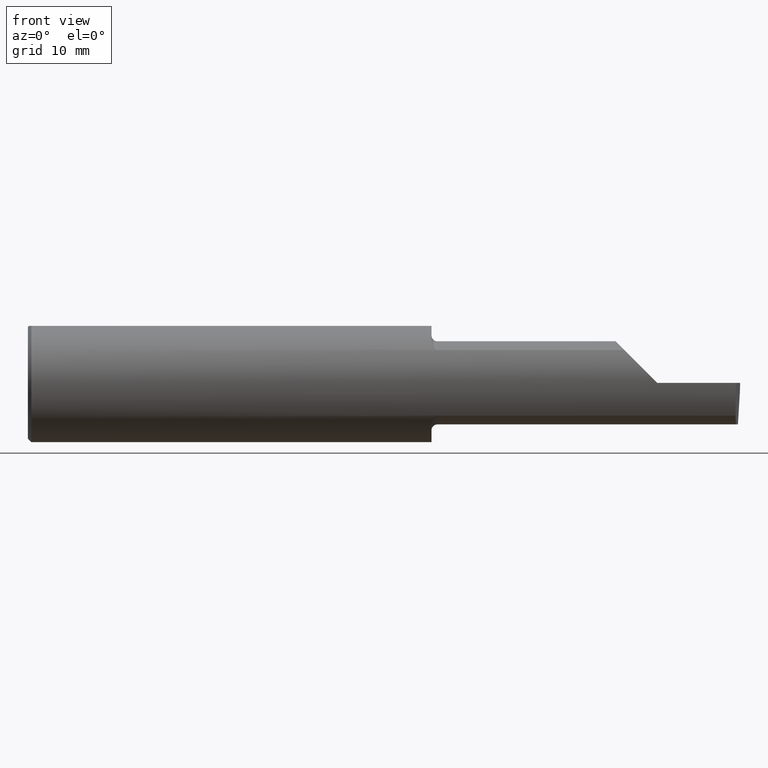
[diagram: clean part render]
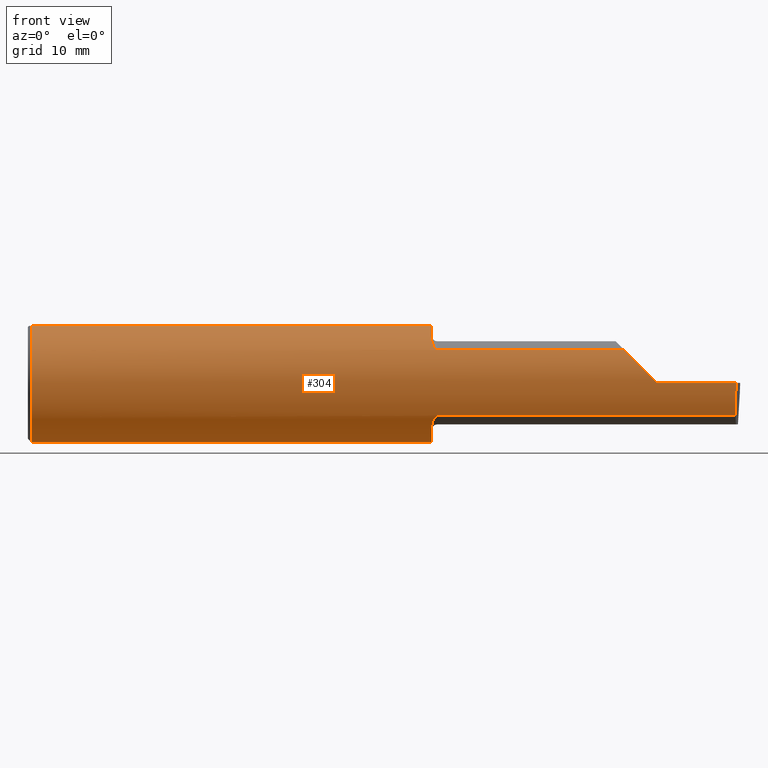
[diagram: same view with one face highlighted and labeled with its STEP entity id]
A machine part, front view. The second image highlights one B-rep face of the part: STEP entity #304.
In plain terms, the highlighted cylindrical surface (partial cylindrical patch) has radius 6.3462 mm, axis along (-1, -0, -0).
Its self-contained STEP definition (entity closure, byte-faithful):
#1 = VECTOR ( 'NONE', #216, 39.37007874015748854 ) ;
#12 = CARTESIAN_POINT ( 'NONE',  ( 1.721718393013769610, -0.2077830475237242569, 0.1387513848711936226 ) ) ;
#17 = CARTESIAN_POINT ( 'NONE',  ( 2.299500000000000099, -0.2080850024789291652, -0.1382955322609665250 ) ) ;
#18 = CARTESIAN_POINT ( 'NONE',  ( 0.01499999999999999944, 0.000000000000000000, 0.000000000000000000 ) ) ;
#22 = EDGE_CURVE ( 'NONE', #267, #264, #620, .T. ) ;
#38 = CARTESIAN_POINT ( 'NONE',  ( 0.000000000000000000, 0.06997856814768359246, 0.2398500000000000076 ) ) ;
#47 = B_SPLINE_CURVE_WITH_KNOTS ( 'NONE', 3,
 ( #792, #242, #730, #181, #431, #670, #375, #119, #370, #244, #490, #732 ),
 .UNSPECIFIED., .F., .F.,
 ( 4, 2, 2, 2, 2, 4 ),
 ( 1.964491429041408350E-07, 0.0001260981470478411324, 0.0002519998449527780849, 0.0005038032407626388169, 0.001007410032382360281, 0.002014623615621801908 ),
 .UNSPECIFIED. ) ;
#51 = CARTESIAN_POINT ( 'NONE',  ( 1.700000000000000178, 0.000000000000000000, 0.000000000000000000 ) ) ;
#53 = EDGE_CURVE ( 'NONE', #608, #605, #455, .T. ) ;
#68 = CARTESIAN_POINT ( 'NONE',  ( 1.700000000000000400, -0.1665641037263010105, 0.1863429692936361404 ) ) ;
#69 = CARTESIAN_POINT ( 'NONE',  ( 0.000000000000000000, 0.000000000000000000, 0.000000000000000000 ) ) ;
#76 = CARTESIAN_POINT ( 'NONE',  ( 1.717647060162628581, -0.2062109266231183513, 0.1410799729252290025 ) ) ;
#80 = CARTESIAN_POINT ( 'NONE',  ( 2.980479240051444378, -0.2080850024789291652, -0.1382955322609665250 ) ) ;
#83 = CARTESIAN_POINT ( 'NONE',  ( 2.552984868485333347, -0.2355204011147992438, 0.09701513151466735485 ) ) ;
#86 = DIRECTION ( 'NONE',  ( -1.000000000000000000, -0.000000000000000000, -0.000000000000000000 ) ) ;
#97 = DIRECTION ( 'NONE',  ( 1.000000000000000000, 0.000000000000000000, 0.000000000000000000 ) ) ;
#112 = LINE ( 'NONE', #354, #315 ) ;
#116 = CARTESIAN_POINT ( 'NONE',  ( 1.700000000000000178, -0.06997856814768374512, 0.2398500000000000076 ) ) ;
#119 = CARTESIAN_POINT ( 'NONE',  ( 1.708176740666625060, -0.1972027065478073882, -0.1535263573771913082 ) ) ;
#121 = EDGE_CURVE ( 'NONE', #299, #186, #158, .T. ) ;
#125 = DIRECTION ( 'NONE',  ( 1.000000000000000000, 0.000000000000000000, 0.000000000000000000 ) ) ;
#128 = CARTESIAN_POINT ( 'NONE',  ( 1.723329956043142985, -0.2080850024798590603, 0.1382955322595675884 ) ) ;
#132 = EDGE_LOOP ( 'NONE', ( #416, #230, #338, #177, #168, #435, #525, #180, #671, #398, #149, #505, #602, #302 ) ) ;
#140 = CARTESIAN_POINT ( 'NONE',  ( 2.650000000000000355, -0.2498499999999999610, 4.286263797015727350E-17 ) ) ;
#148 = CARTESIAN_POINT ( 'NONE',  ( 2.511704467739034552, -0.2080850024789292485, 0.1382955322609664139 ) ) ;
#149 = ORIENTED_EDGE ( 'NONE', *, *, #748, .F. ) ;
#155 = DIRECTION ( 'NONE',  ( -1.000000000000000000, -0.000000000000000000, -0.000000000000000000 ) ) ;
#158 =( BOUNDED_CURVE ( )  B_SPLINE_CURVE ( 3, ( #140, #636, #83, #148 ),
 .UNSPECIFIED., .F., .F. ) 
 B_SPLINE_CURVE_WITH_KNOTS ( ( 4, 4 ),
 ( 4.712388980384689674, 5.298966915116346321 ),
 .UNSPECIFIED. ) 
 CURVE ( )  GEOMETRIC_REPRESENTATION_ITEM ( )  RATIONAL_B_SPLINE_CURVE ( ( 1.000000000000000000, 0.9715321379117538569, 0.9715321379117538569, 1.000000000000000000 ) ) 
 REPRESENTATION_ITEM ( '' )  );
#167 = EDGE_CURVE ( 'NONE', #560, #299, #640, .T. ) ;
#168 = ORIENTED_EDGE ( 'NONE', *, *, #760, .F. ) ;
#170 = CARTESIAN_POINT ( 'NONE',  ( 1.725000000000000089, -0.2080850024789292485, 0.1382955322609664972 ) ) ;
#177 = ORIENTED_EDGE ( 'NONE', *, *, #585, .F. ) ;
#180 = ORIENTED_EDGE ( 'NONE', *, *, #22, .F. ) ;
#181 = CARTESIAN_POINT ( 'NONE',  ( 1.718863362722771404, -0.2068301641248771194, -0.1401678546132359982 ) ) ;
#184 = VECTOR ( 'NONE', #764, 39.37007874015748143 ) ;
#186 = VERTEX_POINT ( 'NONE', #604 ) ;
#196 = CARTESIAN_POINT ( 'NONE',  ( 1.714343523383978773, -0.2041337200786084161, 0.1440846171672511000 ) ) ;
#198 = LINE ( 'NONE', #463, #1 ) ;
#202 = DIRECTION ( 'NONE',  ( 0.000000000000000000, 0.000000000000000000, 1.000000000000000000 ) ) ;
#204 = CARTESIAN_POINT ( 'NONE',  ( 1.706159563508733878, -0.1933019864360849271, 0.1584298865564830183 ) ) ;
#216 = DIRECTION ( 'NONE',  ( 0.02616100201822768243, -0.0009135623211515309658, 0.9996573249755575929 ) ) ;
#230 = ORIENTED_EDGE ( 'NONE', *, *, #167, .T. ) ;
#242 = CARTESIAN_POINT ( 'NONE',  ( 1.723318040126429640, -0.2080850024789289987, -0.1382955322609666915 ) ) ;
#244 = CARTESIAN_POINT ( 'NONE',  ( 1.701385488563270210, -0.1808287530430325862, -0.1728790649396286794 ) ) ;
#251 = VERTEX_POINT ( 'NONE', #116 ) ;
#257 = AXIS2_PLACEMENT_3D ( 'NONE', #69, #324, #555 ) ;
#260 = CARTESIAN_POINT ( 'NONE',  ( 2.982632426700502215, -0.2498495826666993769, -0.0004566631977452191267 ) ) ;
#264 = VERTEX_POINT ( 'NONE', #662 ) ;
#267 = VERTEX_POINT ( 'NONE', #298 ) ;
#285 = DIRECTION ( 'NONE',  ( 0.000000000000000000, 0.000000000000000000, -1.000000000000000000 ) ) ;
#293 = CARTESIAN_POINT ( 'NONE',  ( 1.700000000000000178, -0.1616050818046604332, -0.1905487340154980169 ) ) ;
#298 = CARTESIAN_POINT ( 'NONE',  ( 0.01499999999999999944, 0.000000000000000000, -0.2498499999999999888 ) ) ;
#299 = VERTEX_POINT ( 'NONE', #427 ) ;
#302 = ORIENTED_EDGE ( 'NONE', *, *, #363, .T. ) ;
#304 = ADVANCED_FACE ( 'NONE', ( #362 ), #321, .T. ) ;
#315 = VECTOR ( 'NONE', #97, 39.37007874015748143 ) ;
#321 = CYLINDRICAL_SURFACE ( 'NONE', #257, 0.2498499999999999888 ) ;
#324 = DIRECTION ( 'NONE',  ( -1.000000000000000000, -0.000000000000000000, -0.000000000000000000 ) ) ;
#326 =( BOUNDED_CURVE ( )  B_SPLINE_CURVE ( 3, ( #736, #378, #443, #260 ),
 .UNSPECIFIED., .F., .T. ) 
 B_SPLINE_CURVE_WITH_KNOTS ( ( 4, 4 ),
 ( 0.05713034791898981279, 0.6418805321923489737 ),
 .UNSPECIFIED. ) 
 CURVE ( )  GEOMETRIC_REPRESENTATION_ITEM ( )  RATIONAL_B_SPLINE_CURVE ( ( 1.000000000000000000, 0.9717080070095445166, 0.9717080070095445166, 1.000000000000000000 ) ) 
 REPRESENTATION_ITEM ( '' )  );
#333 = CARTESIAN_POINT ( 'NONE',  ( 2.982644377562602589, -0.2498499999999999610, 1.813681607540488003E-17 ) ) ;
#338 = ORIENTED_EDGE ( 'NONE', *, *, #121, .T. ) ;
#349 = CARTESIAN_POINT ( 'NONE',  ( 0.01499999999999998036, 0.06997856814768359246, 0.2398500000000000076 ) ) ;
#354 = CARTESIAN_POINT ( 'NONE',  ( 2.299500000000000099, -0.2080850024789291652, 0.1382955322609665250 ) ) ;
#362 = FACE_OUTER_BOUND ( 'NONE', #132, .T. ) ;
#363 = EDGE_CURVE ( 'NONE', #778, #644, #326, .T. ) ;
#369 = VERTEX_POINT ( 'NONE', #553 ) ;
#370 = CARTESIAN_POINT ( 'NONE',  ( 1.706147634408388125, -0.1932733126899460752, -0.1584637047788196307 ) ) ;
#375 = CARTESIAN_POINT ( 'NONE',  ( 1.712579853086619419, -0.2024300470081735470, -0.1464774911482684128 ) ) ;
#377 = CARTESIAN_POINT ( 'NONE',  ( 1.700367168219774072, -0.1713400252854603567, 0.1819601557798505298 ) ) ;
#378 = CARTESIAN_POINT ( 'NONE',  ( 2.980602402804240381, -0.2354324170447328057, -0.09714751587400703714 ) ) ;
#386 = DIRECTION ( 'NONE',  ( 0.000000000000000000, 0.000000000000000000, 1.000000000000000000 ) ) ;
#390 = EDGE_CURVE ( 'NONE', #369, #687, #47, .T. ) ;
#393 = CARTESIAN_POINT ( 'NONE',  ( 1.701849548162864600, -0.1805300287242674606, 0.1728462070311780063 ) ) ;
#398 = ORIENTED_EDGE ( 'NONE', *, *, #53, .F. ) ;
#409 = AXIS2_PLACEMENT_3D ( 'NONE', #18, #86, #202 ) ;
#416 = ORIENTED_EDGE ( 'NONE', *, *, #539, .T. ) ;
#420 = VERTEX_POINT ( 'NONE', #448 ) ;
#424 = AXIS2_PLACEMENT_3D ( 'NONE', #501, #125, #679 ) ;
#427 = CARTESIAN_POINT ( 'NONE',  ( 2.650000000000000355, -0.2498499999999999610, 4.286263797015727350E-17 ) ) ;
#431 = CARTESIAN_POINT ( 'NONE',  ( 1.717611663768900510, -0.2061921161193830676, -0.1411075319999376687 ) ) ;
#435 = ORIENTED_EDGE ( 'NONE', *, *, #727, .F. ) ;
#443 = CARTESIAN_POINT ( 'NONE',  ( 2.981341028891338230, -0.2497592792593404665, -0.04986346618387295371 ) ) ;
#445 = EDGE_CURVE ( 'NONE', #264, #251, #702, .T. ) ;
#448 = CARTESIAN_POINT ( 'NONE',  ( 1.700000000000000178, -0.1616050818046604332, 0.1905487340154980169 ) ) ;
#455 = LINE ( 'NONE', #38, #646 ) ;
#463 = CARTESIAN_POINT ( 'NONE',  ( 2.977412177158956563, -0.2496672875357696664, -0.1999314649951114686 ) ) ;
#490 = CARTESIAN_POINT ( 'NONE',  ( 1.700000000000000178, -0.1716188362992555616, -0.1820560320165479640 ) ) ;
#501 = CARTESIAN_POINT ( 'NONE',  ( 1.700000000000000178, 0.000000000000000000, 0.000000000000000000 ) ) ;
#505 = ORIENTED_EDGE ( 'NONE', *, *, #390, .F. ) ;
#513 = CARTESIAN_POINT ( 'NONE',  ( 0.000000000000000000, -0.06997856814768359246, 0.2398500000000000076 ) ) ;
#524 = DIRECTION ( 'NONE',  ( -1.000000000000000000, -0.000000000000000000, -0.000000000000000000 ) ) ;
#525 = ORIENTED_EDGE ( 'NONE', *, *, #445, .F. ) ;
#527 = EDGE_CURVE ( 'NONE', #778, #369, #577, .T. ) ;
#539 = EDGE_CURVE ( 'NONE', #644, #560, #198, .T. ) ;
#549 = CIRCLE ( 'NONE', #583, 0.2498499999999999888 ) ;
#553 = CARTESIAN_POINT ( 'NONE',  ( 1.725000000000000089, -0.2080850024789291375, -0.1382955322609665805 ) ) ;
#555 = DIRECTION ( 'NONE',  ( 0.000000000000000000, 0.000000000000000000, 1.000000000000000000 ) ) ;
#558 = DIRECTION ( 'NONE',  ( -1.000000000000000000, -0.000000000000000000, -0.000000000000000000 ) ) ;
#560 = VERTEX_POINT ( 'NONE', #333 ) ;
#577 = LINE ( 'NONE', #17, #597 ) ;
#578 = CARTESIAN_POINT ( 'NONE',  ( 4.499279347985559139E-32, -0.2498499999999999610, 3.673940397442053459E-16 ) ) ;
#583 = AXIS2_PLACEMENT_3D ( 'NONE', #51, #586, #285 ) ;
#585 = EDGE_CURVE ( 'NONE', #668, #186, #112, .T. ) ;
#586 = DIRECTION ( 'NONE',  ( 1.000000000000000000, 0.000000000000000000, 0.000000000000000000 ) ) ;
#596 = AXIS2_PLACEMENT_3D ( 'NONE', #621, #558, #386 ) ;
#597 = VECTOR ( 'NONE', #155, 39.37007874015748143 ) ;
#602 = ORIENTED_EDGE ( 'NONE', *, *, #527, .F. ) ;
#604 = CARTESIAN_POINT ( 'NONE',  ( 2.511704467739034552, -0.2080850024789292485, 0.1382955322609664139 ) ) ;
#605 = VERTEX_POINT ( 'NONE', #349 ) ;
#608 = VERTEX_POINT ( 'NONE', #723 ) ;
#614 = CARTESIAN_POINT ( 'NONE',  ( 1.718876997637615034, -0.2068363917296600907, 0.1401586554522229189 ) ) ;
#620 = CIRCLE ( 'NONE', #409, 0.2498499999999999888 ) ;
#621 = CARTESIAN_POINT ( 'NONE',  ( 0.01499999999999999944, 0.000000000000000000, 0.000000000000000000 ) ) ;
#628 = CARTESIAN_POINT ( 'NONE',  ( 1.725000000000000089, -0.2080850024789292485, 0.1382955322609664972 ) ) ;
#633 = CARTESIAN_POINT ( 'NONE',  ( 1.708182335268384477, -0.1972192205116131691, 0.1535061413537209818 ) ) ;
#636 = CARTESIAN_POINT ( 'NONE',  ( 2.600434159100403875, -0.2498499999999999055, 0.04956584089959691769 ) ) ;
#637 = B_SPLINE_CURVE_WITH_KNOTS ( 'NONE', 3,
 ( #691, #68, #377, #393, #755, #204, #633, #683, #196, #76, #614, #12, #128, #628 ),
 .UNSPECIFIED., .F., .F.,
 ( 4, 2, 2, 2, 2, 2, 4 ),
 ( 0.0003834465838148164922, 0.0008781406165086738831, 0.001372834649202531437, 0.001867528681896388773, 0.002114875698243311695, 0.002238549206416766760, 0.002362222714590221824 ),
 .UNSPECIFIED. ) ;
#640 = LINE ( 'NONE', #578, #184 ) ;
#644 = VERTEX_POINT ( 'NONE', #771 ) ;
#646 = VECTOR ( 'NONE', #524, 39.37007874015748143 ) ;
#662 = CARTESIAN_POINT ( 'NONE',  ( 0.01499999999999999944, -0.06997856814768359246, 0.2398500000000000076 ) ) ;
#668 = VERTEX_POINT ( 'NONE', #170 ) ;
#670 = CARTESIAN_POINT ( 'NONE',  ( 1.714302603425052363, -0.2041009206016213828, -0.1441313430770039816 ) ) ;
#671 = ORIENTED_EDGE ( 'NONE', *, *, #786, .F. ) ;
#679 = DIRECTION ( 'NONE',  ( 0.000000000000000000, 0.000000000000000000, -1.000000000000000000 ) ) ;
#683 = CARTESIAN_POINT ( 'NONE',  ( 1.712616400345754908, -0.2024684335577102146, 0.1464246884265637538 ) ) ;
#687 = VERTEX_POINT ( 'NONE', #293 ) ;
#691 = CARTESIAN_POINT ( 'NONE',  ( 1.700000000000000178, -0.1616050818046604332, 0.1905487340154980169 ) ) ;
#694 = CIRCLE ( 'NONE', #596, 0.2498499999999999888 ) ;
#695 = VECTOR ( 'NONE', #707, 39.37007874015748143 ) ;
#702 = LINE ( 'NONE', #513, #695 ) ;
#707 = DIRECTION ( 'NONE',  ( 1.000000000000000000, 0.000000000000000000, 0.000000000000000000 ) ) ;
#723 = CARTESIAN_POINT ( 'NONE',  ( 1.700000000000000178, 0.06997856814768360634, 0.2398500000000000076 ) ) ;
#727 = EDGE_CURVE ( 'NONE', #251, #420, #549, .T. ) ;
#730 = CARTESIAN_POINT ( 'NONE',  ( 1.721700027347578876, -0.2077785947292768443, -0.1387580622202825020 ) ) ;
#732 = CARTESIAN_POINT ( 'NONE',  ( 1.700000000000000178, -0.1616050818046604332, -0.1905487340154980169 ) ) ;
#736 = CARTESIAN_POINT ( 'NONE',  ( 2.980479240051444378, -0.2080850024789291652, -0.1382955322609665250 ) ) ;
#748 = EDGE_CURVE ( 'NONE', #687, #608, #763, .T. ) ;
#755 = CARTESIAN_POINT ( 'NONE',  ( 1.702968662030528657, -0.1849684355203378150, 0.1680843977756267538 ) ) ;
#760 = EDGE_CURVE ( 'NONE', #420, #668, #637, .T. ) ;
#763 = CIRCLE ( 'NONE', #424, 0.2498499999999999888 ) ;
#764 = DIRECTION ( 'NONE',  ( -1.000000000000000000, -0.000000000000000000, -0.000000000000000000 ) ) ;
#771 = CARTESIAN_POINT ( 'NONE',  ( 2.982632426700502215, -0.2498495826666993769, -0.0004566631977452191267 ) ) ;
#778 = VERTEX_POINT ( 'NONE', #80 ) ;
#786 = EDGE_CURVE ( 'NONE', #605, #267, #694, .T. ) ;
#792 = CARTESIAN_POINT ( 'NONE',  ( 1.725000000000000089, -0.2080850024789291375, -0.1382955322609665805 ) ) ;